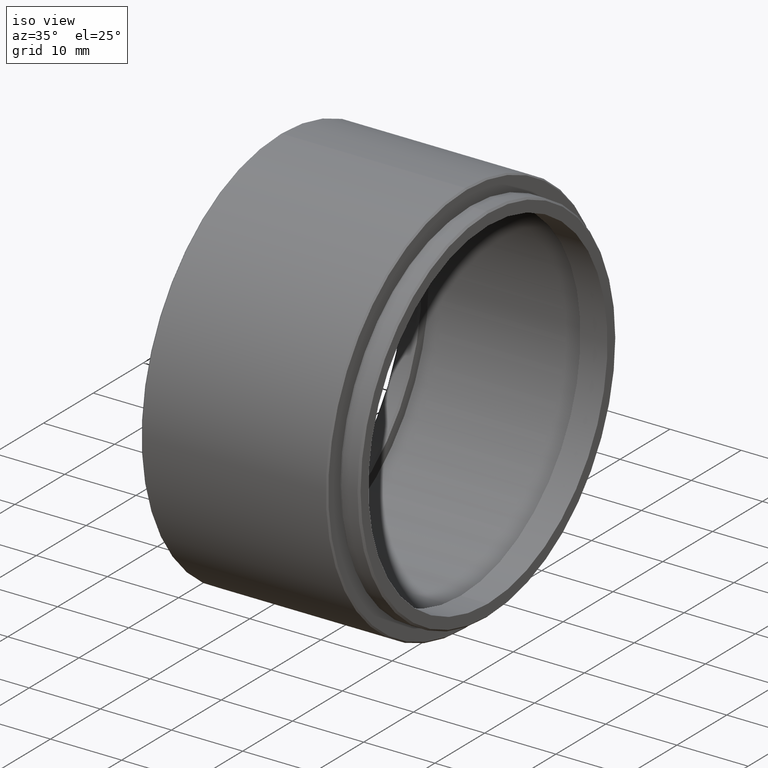
[diagram: clean part render]
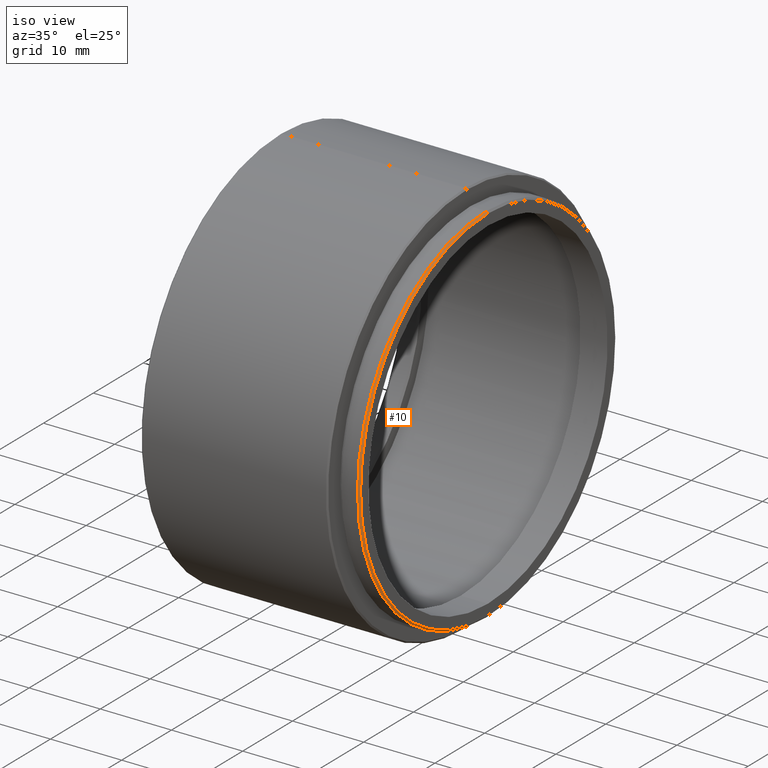
[diagram: same view with one face highlighted and labeled with its STEP entity id]
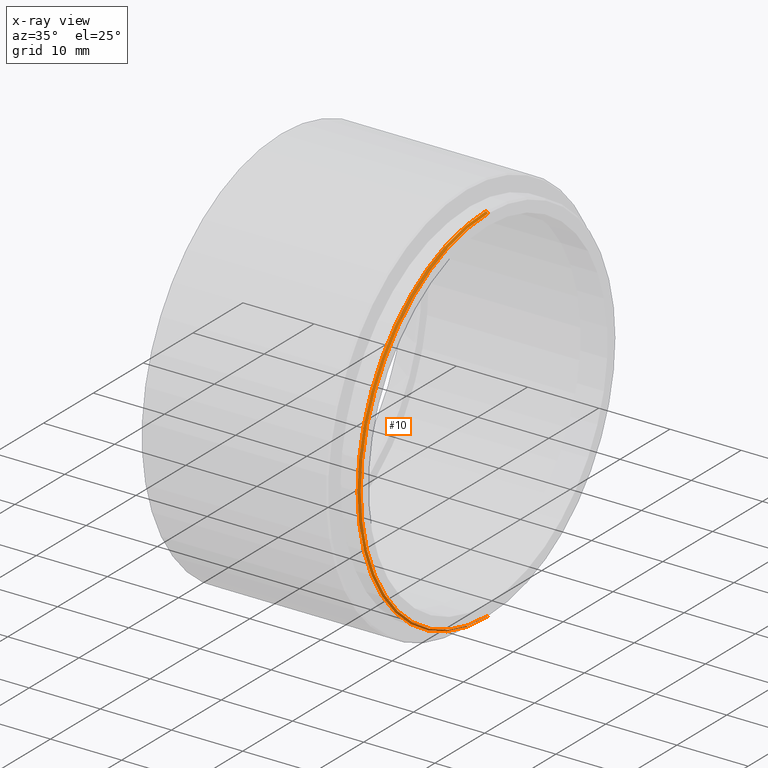
[diagram: x-ray of the same camera — body ghosted, the highlighted face saturated]
A machine part, iso view. The second image highlights one B-rep face of the part: STEP entity #10.
The next image is the same camera in x-ray: the body ghosted, the highlighted face saturated — about 0% of this face is hidden behind the body in this view.
In plain terms, the highlighted conical surface has half-angle 45 deg.
Its self-contained STEP definition (entity closure, byte-faithful):
#10 = ADVANCED_FACE ( 'NONE', ( #1043 ), #1145, .T. ) ;
#33 = ORIENTED_EDGE ( 'NONE', *, *, #1048, .T. ) ;
#133 = EDGE_CURVE ( 'NONE', #1497, #1348, #1314, .T. ) ;
#163 = ORIENTED_EDGE ( 'NONE', *, *, #133, .F. ) ;
#195 = CARTESIAN_POINT ( 'NONE',  ( 6.525999999999982926, -20.10857142857141611, -25.54999999999999716 ) ) ;
#319 = DIRECTION ( 'NONE',  ( 1.000000000000000000, 0.000000000000000000, 0.000000000000000000 ) ) ;
#359 = AXIS2_PLACEMENT_3D ( 'NONE', #1244, #994, #473 ) ;
#363 = DIRECTION ( 'NONE',  ( -1.000000000000000000, 0.000000000000000000, 0.000000000000000000 ) ) ;
#386 = ORIENTED_EDGE ( 'NONE', *, *, #1501, .F. ) ;
#473 = DIRECTION ( 'NONE',  ( 0.000000000000000000, 0.000000000000000000, -1.000000000000000000 ) ) ;
#503 = CARTESIAN_POINT ( 'NONE',  ( 6.525999999999982926, -20.10857142857141966, 0.000000000000000000 ) ) ;
#550 = CARTESIAN_POINT ( 'NONE',  ( 6.525999999999982926, -20.10857142857141966, 25.54999999999999716 ) ) ;
#692 = DIRECTION ( 'NONE',  ( 0.000000000000000000, 0.000000000000000000, -1.000000000000000000 ) ) ;
#706 = LINE ( 'NONE', #550, #1603 ) ;
#745 = CARTESIAN_POINT ( 'NONE',  ( 6.275999999999982926, -20.10857142857141966, 25.80000000000000426 ) ) ;
#829 = CARTESIAN_POINT ( 'NONE',  ( 6.525999999999982926, -20.10857142857141966, 25.54999999999999716 ) ) ;
#842 = VECTOR ( 'NONE', #1090, 1000.000000000000000 ) ;
#857 = VERTEX_POINT ( 'NONE', #745 ) ;
#906 = DIRECTION ( 'NONE',  ( 0.000000000000000000, 0.000000000000000000, 1.000000000000000000 ) ) ;
#994 = DIRECTION ( 'NONE',  ( -1.000000000000000000, 0.000000000000000000, 0.000000000000000000 ) ) ;
#1043 = FACE_OUTER_BOUND ( 'NONE', #1061, .T. ) ;
#1048 = EDGE_CURVE ( 'NONE', #1497, #857, #706, .T. ) ;
#1061 = EDGE_LOOP ( 'NONE', ( #386, #163, #33, #1615 ) ) ;
#1090 = DIRECTION ( 'NONE',  ( -0.7071067811865378028, 8.659560562355054885E-17, -0.7071067811865573427 ) ) ;
#1128 = CARTESIAN_POINT ( 'NONE',  ( 6.275999999999982926, -20.10857142857141611, -25.80000000000000426 ) ) ;
#1145 = CONICAL_SURFACE ( 'NONE', #1649, 25.54999999999999716, 0.7853981633974621568 ) ;
#1192 = LINE ( 'NONE', #195, #842 ) ;
#1244 = CARTESIAN_POINT ( 'NONE',  ( 6.275999999999982926, -20.10857142857141966, 0.000000000000000000 ) ) ;
#1304 = CIRCLE ( 'NONE', #359, 25.80000000000000426 ) ;
#1314 = CIRCLE ( 'NONE', #1434, 25.54999999999999716 ) ;
#1348 = VERTEX_POINT ( 'NONE', #1661 ) ;
#1434 = AXIS2_PLACEMENT_3D ( 'NONE', #1470, #319, #692 ) ;
#1470 = CARTESIAN_POINT ( 'NONE',  ( 6.525999999999982926, -20.10857142857141966, 0.000000000000000000 ) ) ;
#1497 = VERTEX_POINT ( 'NONE', #829 ) ;
#1501 = EDGE_CURVE ( 'NONE', #1348, #1579, #1192, .T. ) ;
#1556 = DIRECTION ( 'NONE',  ( -0.7071067811865378028, 0.000000000000000000, 0.7071067811865573427 ) ) ;
#1579 = VERTEX_POINT ( 'NONE', #1128 ) ;
#1603 = VECTOR ( 'NONE', #1556, 1000.000000000000000 ) ;
#1615 = ORIENTED_EDGE ( 'NONE', *, *, #1654, .F. ) ;
#1649 = AXIS2_PLACEMENT_3D ( 'NONE', #503, #363, #906 ) ;
#1654 = EDGE_CURVE ( 'NONE', #1579, #857, #1304, .T. ) ;
#1661 = CARTESIAN_POINT ( 'NONE',  ( 6.525999999999982926, -20.10857142857141611, -25.54999999999999716 ) ) ;